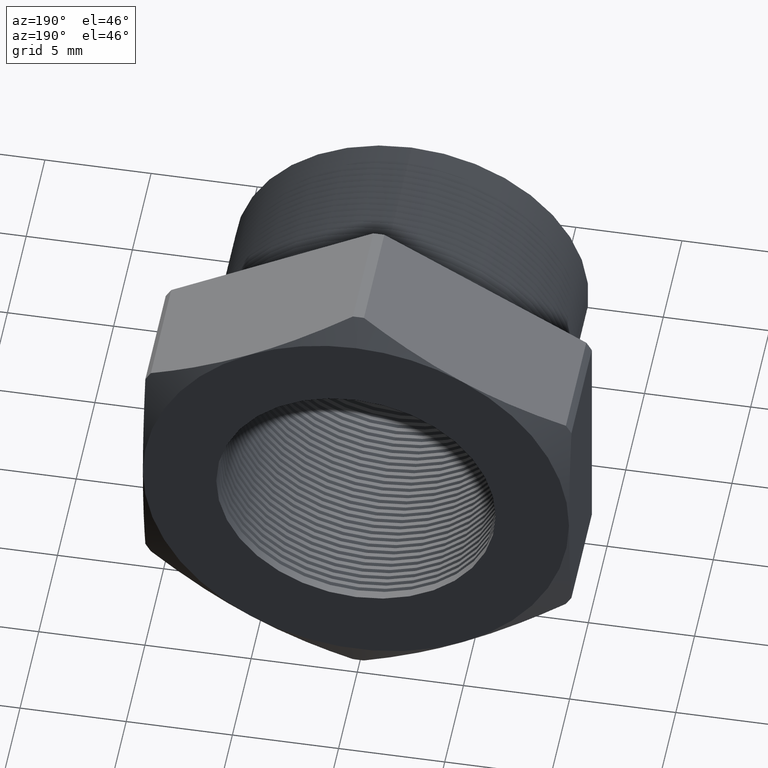
[diagram: clean part render]
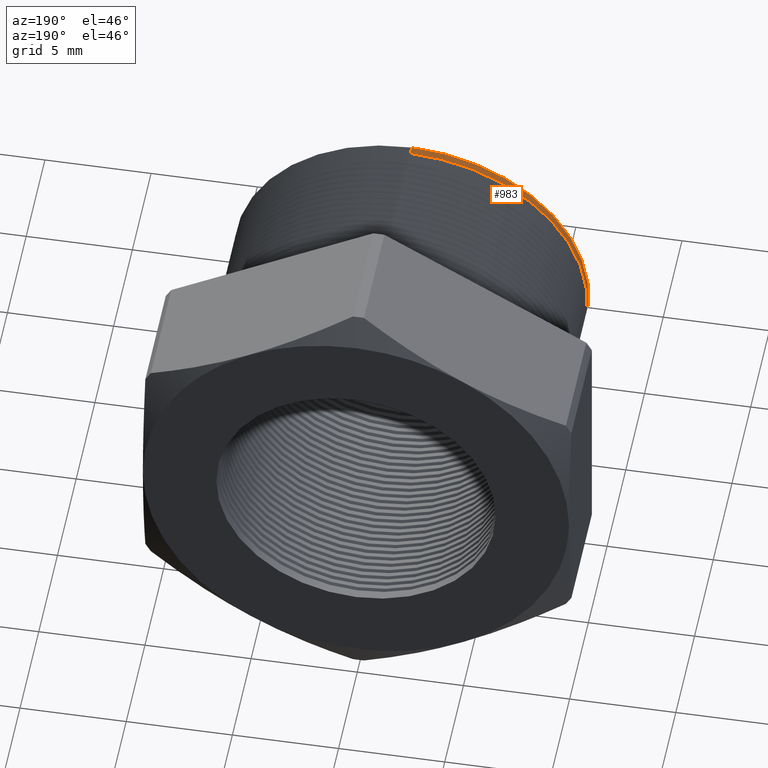
[diagram: same view with one face highlighted and labeled with its STEP entity id]
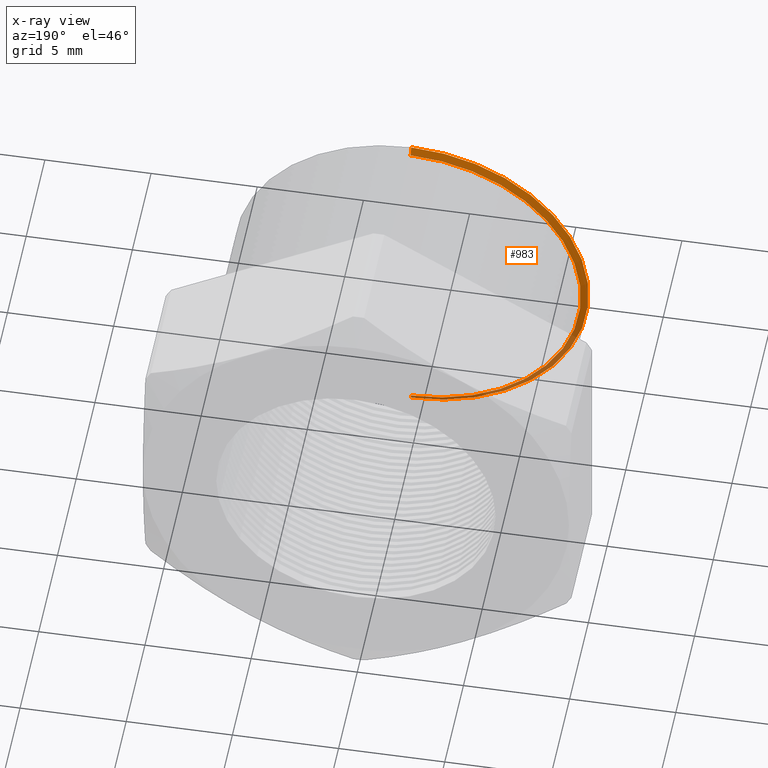
[diagram: x-ray of the same camera — body ghosted, the highlighted face saturated]
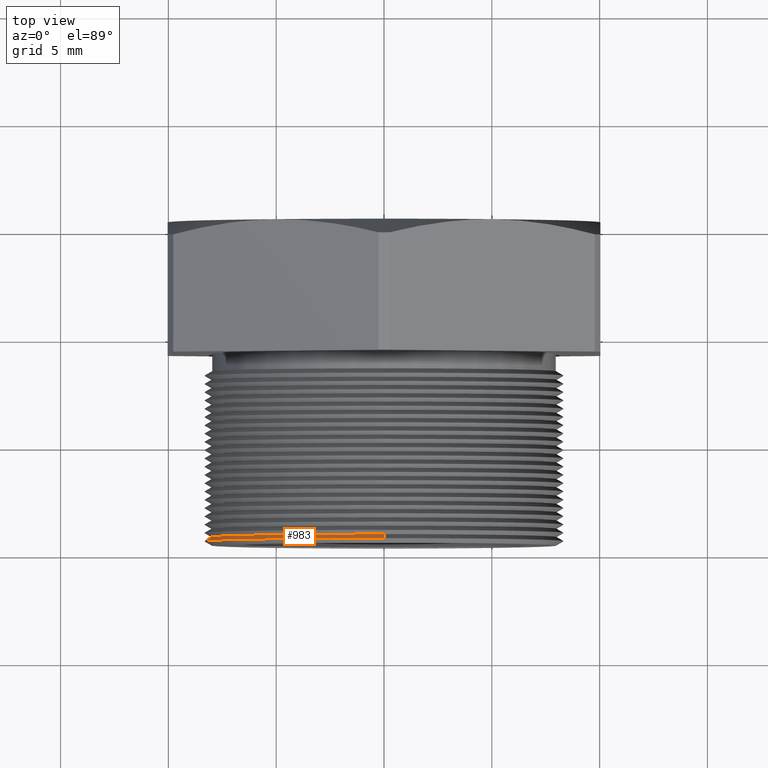
[diagram: same view with one face highlighted and labeled with its STEP entity id]
A machine part, auxiliary view. The second image highlights one B-rep face of the part: STEP entity #983.
The next image is the same camera in x-ray: the body ghosted, the highlighted face saturated — about 24% of this face is hidden behind the body in this view.
A second angle (top view) of the same face is appended — the face is thin or edge-on in the first view.
In plain terms, the highlighted conical surface has half-angle 60 deg.
Its self-contained STEP definition (entity closure, byte-faithful):
#980 = EDGE_CURVE ( 'NONE', #5651, #5644, #3037, .T. ) ;
#983 = ADVANCED_FACE ( 'NONE', ( #3030 ), #3029, .T. ) ;
#984 = EDGE_LOOP ( 'NONE', ( #985, #986, #987, #988 ) ) ;
#985 = ORIENTED_EDGE ( 'NONE', *, *, #5643, .F. ) ;
#986 = ORIENTED_EDGE ( 'NONE', *, *, #980, .T. ) ;
#987 = ORIENTED_EDGE ( 'NONE', *, *, #5630, .T. ) ;
#988 = ORIENTED_EDGE ( 'NONE', *, *, #989, .T. ) ;
#989 = EDGE_CURVE ( 'NONE', #5597, #5603, #3028, .T. ) ;
#3020 = DIRECTION ( 'NONE',  ( 0.0000000000000000000, 0.0000000000000000000, 1.000000000000000000 ) ) ;
#3021 = DIRECTION ( 'NONE',  ( -0.0000000000000000000, 1.000000000000000000, -0.0000000000000000000 ) ) ;
#3022 = CARTESIAN_POINT ( 'NONE',  ( 0.0000000000000000000, -0.1746451094170520500, 0.0000000000000000000 ) ) ;
#3023 = AXIS2_PLACEMENT_3D ( 'NONE', #3022, #3021, #3020 ) ;
#3024 = DIRECTION ( 'NONE',  ( 0.0000000000000000000, 0.0000000000000000000, -1.000000000000000000 ) ) ;
#3025 = DIRECTION ( 'NONE',  ( 0.0000000000000000000, -1.000000000000000000, 0.0000000000000000000 ) ) ;
#3026 = CARTESIAN_POINT ( 'NONE',  ( 0.0000000000000000000, -0.1666927551899911600, 0.0000000000000000000 ) ) ;
#3027 = AXIS2_PLACEMENT_3D ( 'NONE', #3026, #3025, #3024 ) ;
#3028 = CIRCLE ( 'NONE', #3023, 0.3287738815610546900 ) ;
#3029 = CONICAL_SURFACE ( 'NONE', #3027, 0.3150000000000000600, 1.047197551196598700 ) ;
#3030 = FACE_OUTER_BOUND ( 'NONE', #984, .T. ) ;
#3031 = DIRECTION ( 'NONE',  ( 0.0000000000000000000, 0.0000000000000000000, -1.000000000000000000 ) ) ;
#3032 = DIRECTION ( 'NONE',  ( 0.0000000000000000000, -1.000000000000000000, 0.0000000000000000000 ) ) ;
#3033 = CARTESIAN_POINT ( 'NONE',  ( 0.0000000000000000000, -0.1670901094170521000, 0.0000000000000000000 ) ) ;
#3034 = AXIS2_PLACEMENT_3D ( 'NONE', #3033, #3032, #3031 ) ;
#3037 = CIRCLE ( 'NONE', #3034, 0.3156882377098719800 ) ;
#3585 = CARTESIAN_POINT ( 'NONE',  ( 4.026318816969966800E-017, -0.1746451094170520500, 0.3287738815610546900 ) ) ;
#3599 = CARTESIAN_POINT ( 'NONE',  ( 0.0000000000000000000, -0.1746451094170520500, -0.3287738815610546900 ) ) ;
#3633 = LINE ( 'NONE', #3694, #3693 ) ;
#3658 = DIRECTION ( 'NONE',  ( 0.0000000000000000000, -0.4999999999999991100, -0.8660254037844391500 ) ) ;
#3659 = VECTOR ( 'NONE', #3658, 39.37007874015748100 ) ;
#3660 = CARTESIAN_POINT ( 'NONE',  ( 0.0000000000000000000, -0.1666927551899911600, -0.3150000000000000600 ) ) ;
#3661 = LINE ( 'NONE', #3660, #3659 ) ;
#3690 = CARTESIAN_POINT ( 'NONE',  ( 0.0000000000000000000, -0.1670901094170521000, 0.3156882377098719800 ) ) ;
#3691 = CARTESIAN_POINT ( 'NONE',  ( 3.946192357684300700E-017, -0.1670901094170521000, -0.3156882377098719800 ) ) ;
#3692 = DIRECTION ( 'NONE',  ( 1.060575238724907500E-016, -0.4999999999999991100, 0.8660254037844391500 ) ) ;
#3693 = VECTOR ( 'NONE', #3692, 39.37007874015748100 ) ;
#3694 = CARTESIAN_POINT ( 'NONE',  ( 3.857637417314163300E-017, -0.1666927551899911600, 0.3150000000000000600 ) ) ;
#5597 = VERTEX_POINT ( 'NONE', #3599 ) ;
#5603 = VERTEX_POINT ( 'NONE', #3585 ) ;
#5630 = EDGE_CURVE ( 'NONE', #5644, #5597, #3661, .T. ) ;
#5643 = EDGE_CURVE ( 'NONE', #5651, #5603, #3633, .T. ) ;
#5644 = VERTEX_POINT ( 'NONE', #3691 ) ;
#5651 = VERTEX_POINT ( 'NONE', #3690 ) ;